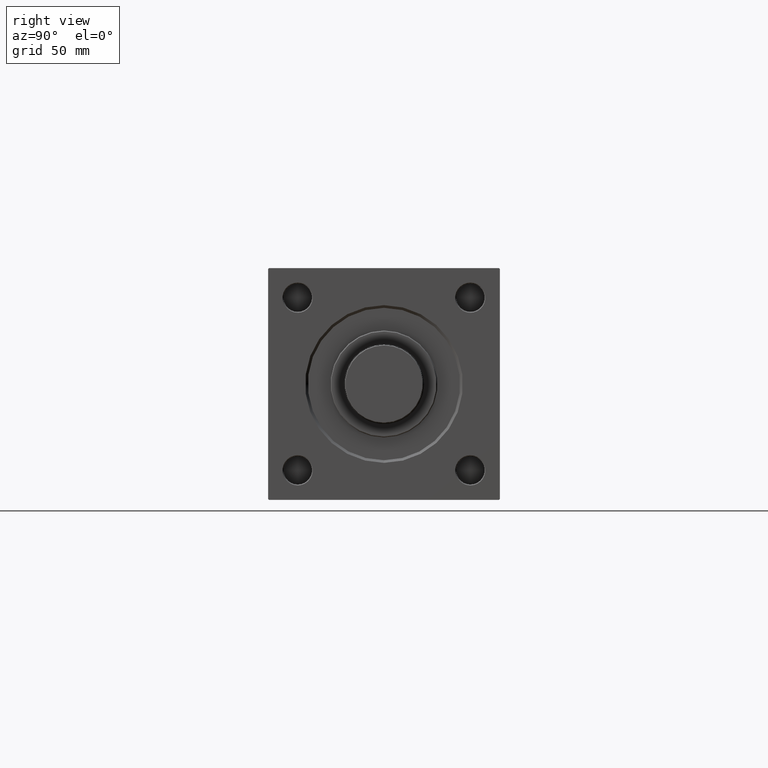
[diagram: clean part render]
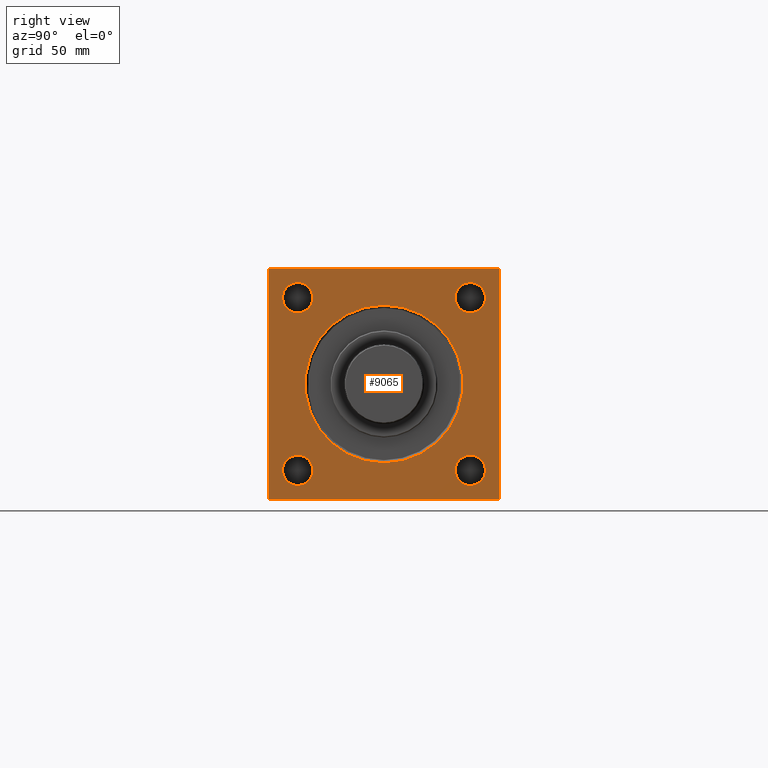
[diagram: same view with one face highlighted and labeled with its STEP entity id]
A machine part, right view. The second image highlights one B-rep face of the part: STEP entity #9065.
In plain terms, the highlighted planar face has unit normal (-1, 0, 0).
Its self-contained STEP definition (entity closure, byte-faithful):
#186 = EDGE_LOOP ( 'NONE', ( #15873, #18503 ) ) ;
#527 = CARTESIAN_POINT ( 'NONE',  ( 268.0000000000000000, 64.49999999999997158, -64.99999999999998579 ) ) ;
#1287 = CARTESIAN_POINT ( 'NONE',  ( 268.0000000000000000, -48.44999999999998153, 48.44999999999998863 ) ) ;
#1538 = DIRECTION ( 'NONE',  ( -1.000000000000000000, 0.000000000000000000, -0.000000000000000000 ) ) ;
#1901 = ORIENTED_EDGE ( 'NONE', *, *, #41039, .T. ) ;
#2121 = LINE ( 'NONE', #48900, #26544 ) ;
#2204 = CARTESIAN_POINT ( 'NONE',  ( 268.0000000000000000, 65.00000000000002842, -64.49999999999992895 ) ) ;
#2334 = CARTESIAN_POINT ( 'NONE',  ( 268.0000000000000000, 64.50000000000005684, 65.00000000000001421 ) ) ;
#2711 = EDGE_CURVE ( 'NONE', #34488, #20886, #2121, .T. ) ;
#2794 = AXIS2_PLACEMENT_3D ( 'NONE', #9310, #13170, #28922 ) ;
#2855 = VERTEX_POINT ( 'NONE', #27891 ) ;
#3246 = CARTESIAN_POINT ( 'NONE',  ( 268.0000000000000000, 48.45000000000000995, 48.45000000000001705 ) ) ;
#3450 = CARTESIAN_POINT ( 'NONE',  ( 268.0000000000000000, 48.45000000000000995, -39.95000000000003126 ) ) ;
#3503 = DIRECTION ( 'NONE',  ( -1.000000000000000000, 0.000000000000000000, -0.000000000000000000 ) ) ;
#3507 = AXIS2_PLACEMENT_3D ( 'NONE', #32600, #9614, #25353 ) ;
#3666 = VERTEX_POINT ( 'NONE', #527 ) ;
#3722 = VERTEX_POINT ( 'NONE', #43182 ) ;
#4774 = CARTESIAN_POINT ( 'NONE',  ( 268.0000000000000000, -48.44999999999998153, 56.94999999999996732 ) ) ;
#5166 = FACE_BOUND ( 'NONE', #33397, .T. ) ;
#5397 = EDGE_CURVE ( 'NONE', #23928, #50707, #29113, .T. ) ;
#5415 = FACE_BOUND ( 'NONE', #48547, .T. ) ;
#5960 = VECTOR ( 'NONE', #21998, 1000.000000000000000 ) ;
#6219 = EDGE_CURVE ( 'NONE', #38502, #47134, #26380, .T. ) ;
#6342 = DIRECTION ( 'NONE',  ( -0.000000000000000000, 0.7071067811865474617, 0.7071067811865474617 ) ) ;
#7017 = CARTESIAN_POINT ( 'NONE',  ( 268.0000000000000000, 65.00000000000002842, 65.00000000000001421 ) ) ;
#7028 = EDGE_CURVE ( 'NONE', #3666, #17302, #21750, .T. ) ;
#8075 = FACE_BOUND ( 'NONE', #28381, .T. ) ;
#8224 = VECTOR ( 'NONE', #6342, 1000.000000000000114 ) ;
#8230 = DIRECTION ( 'NONE',  ( 0.000000000000000000, -0.7071067811865474617, 0.7071067811865474617 ) ) ;
#8720 = CARTESIAN_POINT ( 'NONE',  ( 268.0000000000000000, 0.000000000000000000, 0.000000000000000000 ) ) ;
#8846 = DIRECTION ( 'NONE',  ( -1.000000000000000000, 0.000000000000000000, -0.000000000000000000 ) ) ;
#9051 = EDGE_CURVE ( 'NONE', #27983, #44204, #44801, .T. ) ;
#9065 = ADVANCED_FACE ( 'NONE', ( #5166, #15820, #8075, #9301, #5415, #47098 ), #27188, .F. ) ;
#9301 = FACE_BOUND ( 'NONE', #18463, .T. ) ;
#9310 = CARTESIAN_POINT ( 'NONE',  ( 268.0000000000000000, -48.45000000000001705, -48.45000000000001705 ) ) ;
#9534 = VERTEX_POINT ( 'NONE', #11269 ) ;
#9614 = DIRECTION ( 'NONE',  ( -1.000000000000000000, 0.000000000000000000, -0.000000000000000000 ) ) ;
#9674 = AXIS2_PLACEMENT_3D ( 'NONE', #35455, #31302, #10517 ) ;
#10217 = EDGE_CURVE ( 'NONE', #3722, #42452, #34942, .T. ) ;
#10413 = CARTESIAN_POINT ( 'NONE',  ( 268.0000000000000000, -48.44999999999998153, 39.95000000000000284 ) ) ;
#10517 = DIRECTION ( 'NONE',  ( 0.000000000000000000, 0.000000000000000000, 1.000000000000000000 ) ) ;
#10891 = DIRECTION ( 'NONE',  ( 0.000000000000000000, 0.000000000000000000, 1.000000000000000000 ) ) ;
#11269 = CARTESIAN_POINT ( 'NONE',  ( 268.0000000000000000, 48.45000000000000995, 39.95000000000011653 ) ) ;
#12261 = CARTESIAN_POINT ( 'NONE',  ( 268.0000000000000000, 65.00000000000002842, 65.00000000000001421 ) ) ;
#13109 = AXIS2_PLACEMENT_3D ( 'NONE', #23188, #43107, #38466 ) ;
#13170 = DIRECTION ( 'NONE',  ( -1.000000000000000000, 0.000000000000000000, -0.000000000000000000 ) ) ;
#13782 = VERTEX_POINT ( 'NONE', #29090 ) ;
#14223 = ORIENTED_EDGE ( 'NONE', *, *, #21654, .T. ) ;
#14412 = DIRECTION ( 'NONE',  ( -1.000000000000000000, 0.000000000000000000, -0.000000000000000000 ) ) ;
#14701 = ORIENTED_EDGE ( 'NONE', *, *, #21426, .T. ) ;
#14898 = CIRCLE ( 'NONE', #13109, 8.499999999999980460 ) ;
#15226 = LINE ( 'NONE', #51130, #33112 ) ;
#15400 = EDGE_CURVE ( 'NONE', #48831, #17814, #50104, .T. ) ;
#15528 = CARTESIAN_POINT ( 'NONE',  ( 268.0000000000000000, 48.45000000000000995, -56.94999999999999574 ) ) ;
#15820 = FACE_BOUND ( 'NONE', #186, .T. ) ;
#15873 = ORIENTED_EDGE ( 'NONE', *, *, #9051, .T. ) ;
#16056 = ORIENTED_EDGE ( 'NONE', *, *, #2711, .T. ) ;
#17035 = DIRECTION ( 'NONE',  ( -1.000000000000000000, 0.000000000000000000, -0.000000000000000000 ) ) ;
#17302 = VERTEX_POINT ( 'NONE', #49234 ) ;
#17465 = CARTESIAN_POINT ( 'NONE',  ( 268.0000000000000000, -48.45000000000001705, -56.94999999999999574 ) ) ;
#17814 = VERTEX_POINT ( 'NONE', #40073 ) ;
#18378 = DIRECTION ( 'NONE',  ( 0.000000000000000000, -1.000000000000000000, -1.067522139062650425E-16 ) ) ;
#18463 = EDGE_LOOP ( 'NONE', ( #33096, #36212 ) ) ;
#18503 = ORIENTED_EDGE ( 'NONE', *, *, #48840, .T. ) ;
#18624 = CARTESIAN_POINT ( 'NONE',  ( 268.0000000000000000, 5.419062086227042928E-15, 44.25000000000004263 ) ) ;
#20084 = ORIENTED_EDGE ( 'NONE', *, *, #23754, .T. ) ;
#20238 = CARTESIAN_POINT ( 'NONE',  ( 268.0000000000000000, -64.99999999999998579, 64.50000000000000000 ) ) ;
#20671 = LINE ( 'NONE', #44212, #37120 ) ;
#20886 = VERTEX_POINT ( 'NONE', #26607 ) ;
#20979 = DIRECTION ( 'NONE',  ( 0.000000000000000000, 0.000000000000000000, -1.000000000000000000 ) ) ;
#21426 = EDGE_CURVE ( 'NONE', #3666, #2855, #33982, .T. ) ;
#21654 = EDGE_CURVE ( 'NONE', #20886, #17302, #20671, .T. ) ;
#21750 = LINE ( 'NONE', #37535, #5960 ) ;
#21784 = ORIENTED_EDGE ( 'NONE', *, *, #31593, .T. ) ;
#21998 = DIRECTION ( 'NONE',  ( 0.000000000000000000, -1.000000000000000000, -2.135044278125300850E-16 ) ) ;
#22305 = CIRCLE ( 'NONE', #48597, 8.499999999999980460 ) ;
#22754 = DIRECTION ( 'NONE',  ( -1.000000000000000000, 0.000000000000000000, -0.000000000000000000 ) ) ;
#23188 = CARTESIAN_POINT ( 'NONE',  ( 268.0000000000000000, 48.45000000000000995, -48.45000000000001705 ) ) ;
#23754 = EDGE_CURVE ( 'NONE', #17814, #48831, #35518, .T. ) ;
#23928 = VERTEX_POINT ( 'NONE', #3450 ) ;
#24721 = DIRECTION ( 'NONE',  ( 0.000000000000000000, 0.000000000000000000, 1.000000000000000000 ) ) ;
#24812 = DIRECTION ( 'NONE',  ( 0.000000000000000000, 0.7071067811865672237, -0.7071067811865279218 ) ) ;
#25043 = CARTESIAN_POINT ( 'NONE',  ( 268.0000000000000000, 0.000000000000000000, 0.000000000000000000 ) ) ;
#25353 = DIRECTION ( 'NONE',  ( 0.000000000000000000, 0.000000000000000000, 1.000000000000000000 ) ) ;
#26380 = LINE ( 'NONE', #7017, #36460 ) ;
#26505 = EDGE_LOOP ( 'NONE', ( #16056, #14223, #38724, #14701, #27165, #49700, #34689, #37245 ) ) ;
#26544 = VECTOR ( 'NONE', #20979, 1000.000000000000000 ) ;
#26607 = CARTESIAN_POINT ( 'NONE',  ( 268.0000000000000000, -64.99999999999998579, -64.49999999999997158 ) ) ;
#26977 = CIRCLE ( 'NONE', #49281, 8.499999999999896971 ) ;
#27165 = ORIENTED_EDGE ( 'NONE', *, *, #38254, .F. ) ;
#27188 = PLANE ( 'NONE',  #43176 ) ;
#27580 = DIRECTION ( 'NONE',  ( -1.000000000000000000, 0.000000000000000000, -0.000000000000000000 ) ) ;
#27891 = CARTESIAN_POINT ( 'NONE',  ( 268.0000000000000000, 65.00000000000002842, -64.49999999999992895 ) ) ;
#27981 = CARTESIAN_POINT ( 'NONE',  ( 268.0000000000000000, 65.00000000000002842, 64.50000000000004263 ) ) ;
#27983 = VERTEX_POINT ( 'NONE', #10413 ) ;
#28090 = AXIS2_PLACEMENT_3D ( 'NONE', #8720, #27580, #24721 ) ;
#28256 = LINE ( 'NONE', #20238, #44898 ) ;
#28381 = EDGE_LOOP ( 'NONE', ( #21784, #36986 ) ) ;
#28452 = ORIENTED_EDGE ( 'NONE', *, *, #15400, .T. ) ;
#28922 = DIRECTION ( 'NONE',  ( 0.000000000000000000, 0.000000000000000000, 1.000000000000000000 ) ) ;
#28984 = CIRCLE ( 'NONE', #45541, 8.499999999999896971 ) ;
#29090 = CARTESIAN_POINT ( 'NONE',  ( 268.0000000000000000, 48.45000000000000995, 56.94999999999991047 ) ) ;
#29113 = CIRCLE ( 'NONE', #33199, 8.499999999999980460 ) ;
#29232 = EDGE_CURVE ( 'NONE', #30039, #38502, #15226, .T. ) ;
#29429 = EDGE_CURVE ( 'NONE', #9534, #13782, #28984, .T. ) ;
#30039 = VERTEX_POINT ( 'NONE', #27981 ) ;
#30926 = VECTOR ( 'NONE', #32142, 1000.000000000000000 ) ;
#31067 = DIRECTION ( 'NONE',  ( -0.000000000000000000, 0.000000000000000000, 1.000000000000000000 ) ) ;
#31117 = ORIENTED_EDGE ( 'NONE', *, *, #29429, .T. ) ;
#31302 = DIRECTION ( 'NONE',  ( -1.000000000000000000, 0.000000000000000000, -0.000000000000000000 ) ) ;
#31593 = EDGE_CURVE ( 'NONE', #42452, #3722, #34052, .T. ) ;
#32142 = DIRECTION ( 'NONE',  ( 0.000000000000000000, 0.000000000000000000, -1.000000000000000000 ) ) ;
#32600 = CARTESIAN_POINT ( 'NONE',  ( 268.0000000000000000, -48.45000000000001705, -48.45000000000001705 ) ) ;
#33096 = ORIENTED_EDGE ( 'NONE', *, *, #49199, .T. ) ;
#33112 = VECTOR ( 'NONE', #8230, 1000.000000000000114 ) ;
#33199 = AXIS2_PLACEMENT_3D ( 'NONE', #44250, #8846, #43481 ) ;
#33269 = CARTESIAN_POINT ( 'NONE',  ( 268.0000000000000000, 48.45000000000000995, 48.45000000000001705 ) ) ;
#33397 = EDGE_LOOP ( 'NONE', ( #31117, #1901 ) ) ;
#33982 = LINE ( 'NONE', #2204, #8224 ) ;
#34052 = CIRCLE ( 'NONE', #3507, 8.499999999999980460 ) ;
#34059 = CARTESIAN_POINT ( 'NONE',  ( 268.0000000000000000, -64.49999999999997158, 65.00000000000000000 ) ) ;
#34488 = VERTEX_POINT ( 'NONE', #34749 ) ;
#34689 = ORIENTED_EDGE ( 'NONE', *, *, #6219, .T. ) ;
#34749 = CARTESIAN_POINT ( 'NONE',  ( 268.0000000000000000, -64.99999999999998579, 64.50000000000000000 ) ) ;
#34942 = CIRCLE ( 'NONE', #2794, 8.499999999999980460 ) ;
#35029 = DIRECTION ( 'NONE',  ( 0.000000000000000000, 0.000000000000000000, 1.000000000000000000 ) ) ;
#35398 = CARTESIAN_POINT ( 'NONE',  ( 268.0000000000000000, -48.44999999999998153, 48.44999999999998863 ) ) ;
#35455 = CARTESIAN_POINT ( 'NONE',  ( 268.0000000000000000, 0.000000000000000000, 0.000000000000000000 ) ) ;
#35518 = CIRCLE ( 'NONE', #28090, 44.25000000000004263 ) ;
#35631 = EDGE_CURVE ( 'NONE', #47134, #34488, #28256, .T. ) ;
#36212 = ORIENTED_EDGE ( 'NONE', *, *, #5397, .T. ) ;
#36460 = VECTOR ( 'NONE', #18378, 1000.000000000000000 ) ;
#36986 = ORIENTED_EDGE ( 'NONE', *, *, #10217, .T. ) ;
#37120 = VECTOR ( 'NONE', #24812, 1000.000000000000000 ) ;
#37245 = ORIENTED_EDGE ( 'NONE', *, *, #35631, .T. ) ;
#37397 = AXIS2_PLACEMENT_3D ( 'NONE', #1287, #17035, #43479 ) ;
#37535 = CARTESIAN_POINT ( 'NONE',  ( 268.0000000000000000, 65.00000000000002842, -64.99999999999998579 ) ) ;
#38254 = EDGE_CURVE ( 'NONE', #30039, #2855, #40421, .T. ) ;
#38466 = DIRECTION ( 'NONE',  ( 0.000000000000000000, 0.000000000000000000, 1.000000000000000000 ) ) ;
#38502 = VERTEX_POINT ( 'NONE', #2334 ) ;
#38724 = ORIENTED_EDGE ( 'NONE', *, *, #7028, .F. ) ;
#39382 = DIRECTION ( 'NONE',  ( -0.000000000000000000, -0.7071067811865574537, -0.7071067811865376918 ) ) ;
#40073 = CARTESIAN_POINT ( 'NONE',  ( 268.0000000000000000, 0.000000000000000000, -44.25000000000004263 ) ) ;
#40421 = LINE ( 'NONE', #12261, #30926 ) ;
#41039 = EDGE_CURVE ( 'NONE', #13782, #9534, #26977, .T. ) ;
#42452 = VERTEX_POINT ( 'NONE', #17465 ) ;
#43107 = DIRECTION ( 'NONE',  ( -1.000000000000000000, 0.000000000000000000, -0.000000000000000000 ) ) ;
#43176 = AXIS2_PLACEMENT_3D ( 'NONE', #25043, #1538, #31067 ) ;
#43182 = CARTESIAN_POINT ( 'NONE',  ( 268.0000000000000000, -48.45000000000001705, -39.95000000000003126 ) ) ;
#43479 = DIRECTION ( 'NONE',  ( 0.000000000000000000, 0.000000000000000000, 1.000000000000000000 ) ) ;
#43481 = DIRECTION ( 'NONE',  ( 0.000000000000000000, 0.000000000000000000, 1.000000000000000000 ) ) ;
#44204 = VERTEX_POINT ( 'NONE', #4774 ) ;
#44212 = CARTESIAN_POINT ( 'NONE',  ( 268.0000000000000000, -64.49999999999991473, -65.00000000000001421 ) ) ;
#44250 = CARTESIAN_POINT ( 'NONE',  ( 268.0000000000000000, 48.45000000000000995, -48.45000000000001705 ) ) ;
#44801 = CIRCLE ( 'NONE', #37397, 8.499999999999980460 ) ;
#44898 = VECTOR ( 'NONE', #39382, 999.9999999999998863 ) ;
#45541 = AXIS2_PLACEMENT_3D ( 'NONE', #33269, #14412, #49298 ) ;
#47098 = FACE_OUTER_BOUND ( 'NONE', #26505, .T. ) ;
#47134 = VERTEX_POINT ( 'NONE', #34059 ) ;
#48547 = EDGE_LOOP ( 'NONE', ( #20084, #28452 ) ) ;
#48597 = AXIS2_PLACEMENT_3D ( 'NONE', #35398, #22754, #10891 ) ;
#48831 = VERTEX_POINT ( 'NONE', #18624 ) ;
#48840 = EDGE_CURVE ( 'NONE', #44204, #27983, #22305, .T. ) ;
#48900 = CARTESIAN_POINT ( 'NONE',  ( 268.0000000000000000, -64.99999999999998579, 65.00000000000000000 ) ) ;
#49199 = EDGE_CURVE ( 'NONE', #50707, #23928, #14898, .T. ) ;
#49234 = CARTESIAN_POINT ( 'NONE',  ( 268.0000000000000000, -64.49999999999991473, -65.00000000000001421 ) ) ;
#49281 = AXIS2_PLACEMENT_3D ( 'NONE', #3246, #3503, #35029 ) ;
#49298 = DIRECTION ( 'NONE',  ( 0.000000000000000000, 0.000000000000000000, 1.000000000000000000 ) ) ;
#49700 = ORIENTED_EDGE ( 'NONE', *, *, #29232, .T. ) ;
#50104 = CIRCLE ( 'NONE', #9674, 44.25000000000004263 ) ;
#50707 = VERTEX_POINT ( 'NONE', #15528 ) ;
#51130 = CARTESIAN_POINT ( 'NONE',  ( 268.0000000000000000, 64.50000000000005684, 65.00000000000001421 ) ) ;